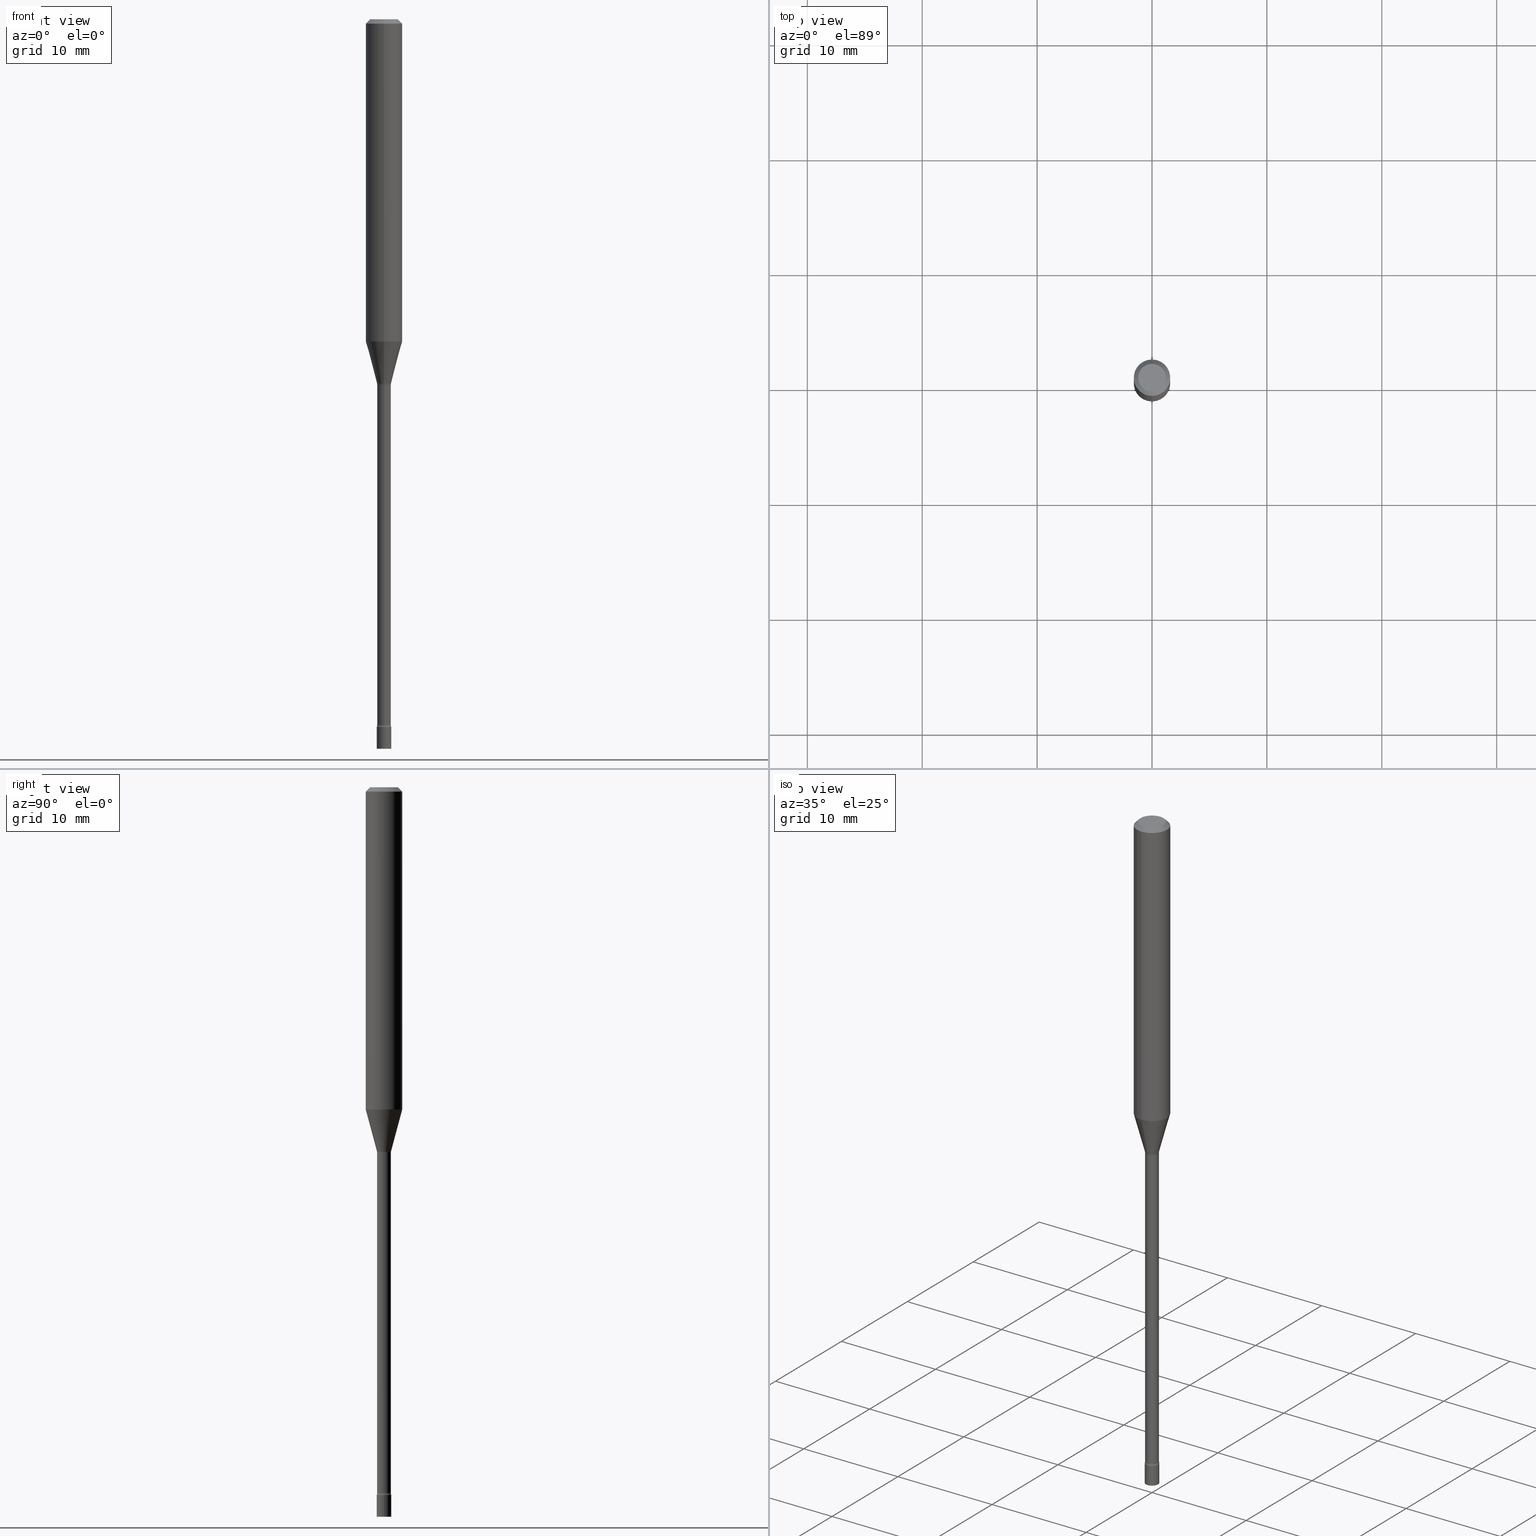
[diagram: canonical four-view strip — front | top / right | iso, engineering-drawing reading convention]
A machine part, canonical four-view strip (front | top / right | iso — engineering-drawing reading convention). The complete STEP part file that produces these views, byte-faithful:
ISO-10303-21;
HEADER;
FILE_DESCRIPTION (( 'STEP AP203' ),
    '1' );
FILE_NAME ('09668.STEP',
    '2024-03-09T00:36:11',
    ( '' ),
    ( '' ),
    'SwSTEP 2.0',
    'SolidWorks 2023',
    '' );
FILE_SCHEMA (( 'CONFIG_CONTROL_DESIGN' ));
ENDSEC;

DATA;
#1 = VECTOR ( 'NONE', #241, 39.37007874015748854 ) ;
#2 = DIRECTION ( 'NONE',  ( -2.445461215800332779E-29, 3.491492208706202500E-15, 1.000000000000000000 ) ) ;
#3 = VERTEX_POINT ( 'NONE', #417 ) ;
#4 = EDGE_LOOP ( 'NONE', ( #263, #208, #84, #265 ) ) ;
#5 = EDGE_LOOP ( 'NONE', ( #44, #283, #34, #11 ) ) ;
#6 = AXIS2_PLACEMENT_3D ( 'NONE', #469, #272, #75 ) ;
#7 = CIRCLE ( 'NONE', #143, 0.02350000000000008332 ) ;
#8 = CARTESIAN_POINT ( 'NONE',  ( -0.02500000000000000139, -8.420137112961222238E-15, -2.500000000000000000 ) ) ;
#9 = DIRECTION ( 'NONE',  ( -1.000000000000000000, 6.982962677686265922E-15, -4.883557194083112340E-29 ) ) ;
#10 = ORIENTED_EDGE ( 'NONE', *, *, #388, .F. ) ;
#11 = ORIENTED_EDGE ( 'NONE', *, *, #17, .F. ) ;
#12 = DIRECTION ( 'NONE',  ( -4.851104656540964275E-15, -0.7071067811865500152, -0.7071067811865450192 ) ) ;
#13 = CALENDAR_DATE ( 2024, 8, 3 ) ;
#14 = CONICAL_SURFACE ( 'NONE', #318, 0.06250000000000000000, 0.7853981633974483900 ) ;
#15 = VERTEX_POINT ( 'NONE', #8 ) ;
#16 = DIRECTION ( 'NONE',  ( -6.982962677686265922E-15, -1.000000000000000000, 0.000000000000000000 ) ) ;
#17 = EDGE_CURVE ( 'NONE', #415, #379, #135, .T. ) ;
#18 = DIRECTION ( 'NONE',  ( -6.982962677686266711E-15, -1.000000000000000000, 3.491492208706202500E-15 ) ) ;
#19 = PRODUCT_DEFINITION ( 'UNKNOWN', '', #339, #386 ) ;
#20 = FACE_OUTER_BOUND ( 'NONE', #144, .T. ) ;
#21 = CARTESIAN_POINT ( 'NONE',  ( 5.914254170850774673E-29, -8.444040013562677130E-15, -2.418461651584689509 ) ) ;
#22 = CIRCLE ( 'NONE', #107, 0.01500000000000002720 ) ;
#23 = DIRECTION ( 'NONE',  ( 7.105427357601001859E-15, 1.000000000000000000, 0.000000000000000000 ) ) ;
#24 = CIRCLE ( 'NONE', #187, 0.02500000000000000139 ) ;
#25 = LOCAL_TIME ( 19, 36, 11.00000000000000000, #513 ) ;
#26 = ADVANCED_FACE ( 'NONE', ( #51 ), #186, .F. ) ;
#27 = CARTESIAN_POINT ( 'NONE',  ( 0.000000000000000000, 0.000000000000000000, 0.000000000000000000 ) ) ;
#28 = PERSON_AND_ORGANIZATION_ROLE ( 'creator' ) ;
#29 = PLANE ( 'NONE',  #470 ) ;
#30 = DIRECTION ( 'NONE',  ( -6.982962677686265133E-15, -1.000000000000000000, 0.000000000000000000 ) ) ;
#31 = APPLICATION_PROTOCOL_DEFINITION ( 'international standard', 'config_control_design', 1994, #174 ) ;
#32 = CARTESIAN_POINT ( 'NONE',  ( 3.061665288873016119E-29, -4.371246607132010195E-15, -1.251974787463811190 ) ) ;
#33 = DIRECTION ( 'NONE',  ( -6.982962677686265133E-15, -1.000000000000000000, 0.000000000000000000 ) ) ;
#34 = ORIENTED_EDGE ( 'NONE', *, *, #380, .F. ) ;
#35 = FACE_OUTER_BOUND ( 'NONE', #327, .T. ) ;
#36 = DATE_AND_TIME ( #212, #414 ) ;
#37 = EDGE_CURVE ( 'NONE', #498, #132, #193, .T. ) ;
#38 = DIRECTION ( 'NONE',  ( 2.445461215800332779E-29, -3.491492208706202106E-15, -1.000000000000000000 ) ) ;
#39 = ORIENTED_EDGE ( 'NONE', *, *, #462, .F. ) ;
#40 = APPROVAL ( #99, 'UNSPECIFIED' ) ;
#41 = PLANE ( 'NONE',  #489 ) ;
#42 = DIRECTION ( 'NONE',  ( 2.438088387897960049E-29, -3.491481338843145188E-15, -1.000000000000000000 ) ) ;
#43 = CARTESIAN_POINT ( 'NONE',  ( 3.668191823700506017E-31, -5.237238313059314424E-17, -0.01500000000000003067 ) ) ;
#44 = ORIENTED_EDGE ( 'NONE', *, *, #323, .T. ) ;
#45 = AXIS2_PLACEMENT_3D ( 'NONE', #434, #425, #438 ) ;
#46 = EDGE_CURVE ( 'NONE', #514, #98, #171, .T. ) ;
#47 = CC_DESIGN_APPROVAL ( #326, ( #19 ) ) ;
#48 = PERSON_AND_ORGANIZATION ( #396, #207 ) ;
#49 = ORIENTED_EDGE ( 'NONE', *, *, #380, .T. ) ;
#50 = CYLINDRICAL_SURFACE ( 'NONE', #420, 0.02500000000000000139 ) ;
#51 = FACE_OUTER_BOUND ( 'NONE', #372, .T. ) ;
#52 = LINE ( 'NONE', #251, #194 ) ;
#53 = ORIENTED_EDGE ( 'NONE', *, *, #348, .T. ) ;
#54 = CIRCLE ( 'NONE', #344, 0.02500000000000000139 ) ;
#55 = CIRCLE ( 'NONE', #108, 0.01500000000000002720 ) ;
#56 = EDGE_CURVE ( 'NONE', #484, #90, #337, .T. ) ;
#57 = DIRECTION ( 'NONE',  ( -2.445468806185136877E-29, 3.491481338843145188E-15, 1.000000000000000000 ) ) ;
#58 = ORIENTED_EDGE ( 'NONE', *, *, #348, .F. ) ;
#59 = EDGE_LOOP ( 'NONE', ( #257, #223, #92, #185 ) ) ;
#60 = EDGE_CURVE ( 'NONE', #3, #484, #22, .T. ) ;
#61 = AXIS2_PLACEMENT_3D ( 'NONE', #43, #133, #290 ) ;
#62 = PRODUCT_RELATED_PRODUCT_CATEGORY ( 'detail', '', ( #394 ) ) ;
#63 = CARTESIAN_POINT ( 'NONE',  ( -1.676687031750432727E-16, -0.02401111260566833952, -1.248092501787273045 ) ) ;
#64 = CARTESIAN_POINT ( 'NONE',  ( 5.930261854998957144E-29, -8.466842246694628363E-15, -2.425000000000000266 ) ) ;
#65 = DIRECTION ( 'NONE',  ( -6.982962677686266711E-15, -1.000000000000000000, 3.491492208706202500E-15 ) ) ;
#66 = LINE ( 'NONE', #243, #227 ) ;
#67 = CARTESIAN_POINT ( 'NONE',  ( 0.000000000000000000, 0.000000000000000000, 0.000000000000000000 ) ) ;
#68 = PERSON_AND_ORGANIZATION_ROLE ( 'design_owner' ) ;
#69 = AXIS2_PLACEMENT_3D ( 'NONE', #303, #457, #18 ) ;
#70 = FACE_OUTER_BOUND ( 'NONE', #261, .T. ) ;
#71 = AXIS2_PLACEMENT_3D ( 'NONE', #27, #430, #197 ) ;
#72 =( GEOMETRIC_REPRESENTATION_CONTEXT ( 3 ) GLOBAL_UNCERTAINTY_ASSIGNED_CONTEXT ( ( #229 ) ) GLOBAL_UNIT_ASSIGNED_CONTEXT ( ( #125, #477, #279 ) ) REPRESENTATION_CONTEXT ( 'NONE', 'WORKASPACE' ) );
#73 = DIRECTION ( 'NONE',  ( -2.445461215800332779E-29, 3.491492208706202500E-15, 1.000000000000000000 ) ) ;
#74 = PERSON_AND_ORGANIZATION_ROLE ( 'design_supplier' ) ;
#75 = DIRECTION ( 'NONE',  ( -6.982962677686265133E-15, -1.000000000000000000, 0.000000000000000000 ) ) ;
#76 = DIRECTION ( 'NONE',  ( 1.000000000000000000, -6.982962677686254878E-15, 0.000000000000000000 ) ) ;
#77 = APPROVAL_DATE_TIME ( #391, #326 ) ;
#78 = DIRECTION ( 'NONE',  ( -1.000000000000000000, 6.982962677686265922E-15, -4.876176775795935793E-29 ) ) ;
#79 = ORIENTED_EDGE ( 'NONE', *, *, #291, .F. ) ;
#80 = CARTESIAN_POINT ( 'NONE',  ( -3.773273898774340269E-16, -0.04749999999999999362, 1.369324853041708217E-16 ) ) ;
#81 = ADVANCED_FACE ( 'NONE', ( #20 ), #29, .F. ) ;
#82 = CALENDAR_DATE ( 2024, 8, 3 ) ;
#83 = AXIS2_PLACEMENT_3D ( 'NONE', #32, #423, #499 ) ;
#84 = ORIENTED_EDGE ( 'NONE', *, *, #17, .T. ) ;
#85 = MECHANICAL_CONTEXT ( 'NONE', #174, 'mechanical' ) ;
#86 = PLANE ( 'NONE',  #269 ) ;
#87 = VERTEX_POINT ( 'NONE', #63 ) ;
#88 = CARTESIAN_POINT ( 'NONE',  ( 5.914254170850774673E-29, -8.444040013562677130E-15, -2.418461651584689509 ) ) ;
#89 = CARTESIAN_POINT ( 'NONE',  ( 1.745740669422178045E-16, 0.02499999999999127226, -2.500000000000000000 ) ) ;
#90 = VERTEX_POINT ( 'NONE', #198 ) ;
#91 = EDGE_CURVE ( 'NONE', #132, #498, #237, .T. ) ;
#92 = ORIENTED_EDGE ( 'NONE', *, *, #298, .T. ) ;
#93 = AXIS2_PLACEMENT_3D ( 'NONE', #21, #192, #476 ) ;
#94 = ORIENTED_EDGE ( 'NONE', *, *, #274, .F. ) ;
#95 = ORIENTED_EDGE ( 'NONE', *, *, #46, .F. ) ;
#96 = DATE_TIME_ROLE ( 'classification_date' ) ;
#97 = ADVANCED_FACE ( 'NONE', ( #358 ), #275, .T. ) ;
#98 = VERTEX_POINT ( 'NONE', #117 ) ;
#99 = APPROVAL_STATUS ( 'not_yet_approved' ) ;
#100 = CIRCLE ( 'NONE', #137, 0.02500000000000000139 ) ;
#101 = ORIENTED_EDGE ( 'NONE', *, *, #56, .F. ) ;
#102 = DIRECTION ( 'NONE',  ( 1.000000000000000000, -6.982962677686254878E-15, 0.000000000000000000 ) ) ;
#103 = ORIENTED_EDGE ( 'NONE', *, *, #91, .F. ) ;
#104 = EDGE_CURVE ( 'NONE', #446, #176, #236, .T. ) ;
#105 = CC_DESIGN_DATE_AND_TIME_ASSIGNMENT ( #36, #170, ( #19 ) ) ;
#106 = CARTESIAN_POINT ( 'NONE',  ( 5.930261854998957144E-29, -8.466842246694628363E-15, -2.425000000000000266 ) ) ;
#107 = AXIS2_PLACEMENT_3D ( 'NONE', #352, #310, #23 ) ;
#108 = AXIS2_PLACEMENT_3D ( 'NONE', #459, #110, #421 ) ;
#109 = LOCAL_TIME ( 19, 36, 11.00000000000000000, #431 ) ;
#110 = DIRECTION ( 'NONE',  ( -1.000000000000000000, 6.982962677686265922E-15, -4.883557194083112340E-29 ) ) ;
#111 = CARTESIAN_POINT ( 'NONE',  ( -4.364351673553647988E-16, -0.06250000000000388578, -1.104450018504813613 ) ) ;
#112 = CARTESIAN_POINT ( 'NONE',  ( 2.700889685043482305E-29, -3.856178634514979647E-15, -1.104450018504814057 ) ) ;
#113 = DIRECTION ( 'NONE',  ( 1.000000000000000000, -6.982962677686254878E-15, 0.000000000000000000 ) ) ;
#114 = DIRECTION ( 'NONE',  ( -2.445461215800332779E-29, 3.491492208706202500E-15, 1.000000000000000000 ) ) ;
#115 = CARTESIAN_POINT ( 'NONE',  ( -0.02500000000000000139, -8.420137112961222238E-15, -2.425000000000000266 ) ) ;
#116 = CIRCLE ( 'NONE', #479, 0.02350000000000000352 ) ;
#117 = CARTESIAN_POINT ( 'NONE',  ( -1.745740669420973060E-16, -0.02500000000000846337, -2.425000000000000266 ) ) ;
#118 = APPROVAL_PERSON_ORGANIZATION ( #48, #40, #343 ) ;
#119 = CARTESIAN_POINT ( 'NONE',  ( -1.676687031750432727E-16, -0.02401111260566833952, -1.248092501787273045 ) ) ;
#120 = CARTESIAN_POINT ( 'NONE',  ( 0.000000000000000000, 0.000000000000000000, 0.000000000000000000 ) ) ;
#121 = DIRECTION ( 'NONE',  ( -6.982962677686266711E-15, -1.000000000000000000, 3.491492208706202500E-15 ) ) ;
#122 = ORIENTED_EDGE ( 'NONE', *, *, #298, .F. ) ;
#123 = ADVANCED_FACE ( 'NONE', ( #349 ), #509, .T. ) ;
#124 = CYLINDRICAL_SURFACE ( 'NONE', #262, 0.06250000000000000000 ) ;
#125 =( CONVERSION_BASED_UNIT ( 'INCH', #443 ) LENGTH_UNIT ( ) NAMED_UNIT ( #233 ) );
#126 = EDGE_CURVE ( 'NONE', #402, #379, #54, .T. ) ;
#127 = EDGE_LOOP ( 'NONE', ( #336, #250, #370, #289 ) ) ;
#128 = CYLINDRICAL_SURFACE ( 'NONE', #293, 0.02500000000000000139 ) ;
#129 = CLOSED_SHELL ( 'NONE', ( #150, #123, #201, #433, #333, #131, #410, #97, #486, #184, #81, #161, #422, #26 ) ) ;
#130 = AXIS2_PLACEMENT_3D ( 'NONE', #312, #38, #406 ) ;
#131 = ADVANCED_FACE ( 'NONE', ( #70 ), #458, .T. ) ;
#132 = VERTEX_POINT ( 'NONE', #242 ) ;
#133 = DIRECTION ( 'NONE',  ( -2.445461215800332779E-29, 3.491492208706202500E-15, 1.000000000000000000 ) ) ;
#134 = ORIENTED_EDGE ( 'NONE', *, *, #448, .T. ) ;
#135 = LINE ( 'NONE', #408, #267 ) ;
#136 = CLOSED_SHELL ( 'NONE', ( #507, #252, #230, #191 ) ) ;
#137 = AXIS2_PLACEMENT_3D ( 'NONE', #246, #400, #33 ) ;
#138 = ORIENTED_EDGE ( 'NONE', *, *, #291, .T. ) ;
#139 = CC_DESIGN_PERSON_AND_ORGANIZATION_ASSIGNMENT ( #366, #467, ( #339 ) ) ;
#140 = EDGE_LOOP ( 'NONE', ( #331, #297 ) ) ;
#141 = DIRECTION ( 'NONE',  ( -2.445461215800332779E-29, 3.491492208706202500E-15, 1.000000000000000000 ) ) ;
#142 = AXIS2_PLACEMENT_3D ( 'NONE', #465, #505, #280 ) ;
#143 = AXIS2_PLACEMENT_3D ( 'NONE', #88, #2, #480 ) ;
#144 = EDGE_LOOP ( 'NONE', ( #456, #95 ) ) ;
#145 = FACE_OUTER_BOUND ( 'NONE', #59, .T. ) ;
#146 = DIRECTION ( 'NONE',  ( 4.937700262164548042E-15, 0.7071067811865451302, -0.7071067811865499042 ) ) ;
#147 = AXIS2_PLACEMENT_3D ( 'NONE', #500, #306, #65 ) ;
#148 = DIRECTION ( 'NONE',  ( -2.445468806185136597E-29, 3.491481338843145583E-15, 1.000000000000000000 ) ) ;
#149 = CYLINDRICAL_SURFACE ( 'NONE', #71, 0.02350000000000004516 ) ;
#150 = ADVANCED_FACE ( 'NONE', ( #395 ), #180, .F. ) ;
#151 = PLANE ( 'NONE',  #130 ) ;
#152 = DIRECTION ( 'NONE',  ( -2.445461215800333059E-29, 3.491492208706202106E-15, 1.000000000000000000 ) ) ;
#153 = MANIFOLD_SOLID_BREP ( 'Body-Move/Copy2[1]', #136 ) ;
#154 = FACE_OUTER_BOUND ( 'NONE', #189, .T. ) ;
#155 = PERSON_AND_ORGANIZATION ( #396, #207 ) ;
#156 = DIRECTION ( 'NONE',  ( 1.000000000000000000, -6.982962677686254878E-15, 0.000000000000000000 ) ) ;
#157 = CARTESIAN_POINT ( 'NONE',  ( 3.052161806851984185E-29, -4.357705245734896146E-15, -1.248092501787273045 ) ) ;
#158 = PERSON_AND_ORGANIZATION ( #396, #207 ) ;
#159 = AXIS2_PLACEMENT_3D ( 'NONE', #296, #342, #493 ) ;
#160 = AXIS2_PLACEMENT_3D ( 'NONE', #304, #9, #378 ) ;
#161 = ADVANCED_FACE ( 'NONE', ( #145 ), #440, .F. ) ;
#162 = CARTESIAN_POINT ( 'NONE',  ( 5.914272527905344176E-29, -8.444013725215716224E-15, -2.418461651584689509 ) ) ;
#163 = LINE ( 'NONE', #273, #429 ) ;
#164 = CC_DESIGN_DATE_AND_TIME_ASSIGNMENT ( #244, #96, ( #483 ) ) ;
#165 = FACE_OUTER_BOUND ( 'NONE', #213, .T. ) ;
#166 = DIRECTION ( 'NONE',  ( 1.000000000000000000, -6.982962677686267499E-15, 4.876176775795936353E-29 ) ) ;
#167 = PERSON_AND_ORGANIZATION ( #396, #207 ) ;
#168 = VERTEX_POINT ( 'NONE', #351 ) ;
#169 = EDGE_CURVE ( 'NONE', #176, #446, #300, .T. ) ;
#170 = DATE_TIME_ROLE ( 'creation_date' ) ;
#171 = CIRCLE ( 'NONE', #142, 0.02500000000000000139 ) ;
#172 = ORIENTED_EDGE ( 'NONE', *, *, #397, .T. ) ;
#173 = AXIS2_PLACEMENT_3D ( 'NONE', #449, #177, #517 ) ;
#174 = APPLICATION_CONTEXT ( 'configuration controlled 3d designs of mechanical parts and assemblies' ) ;
#175 = ORIENTED_EDGE ( 'NONE', *, *, #37, .T. ) ;
#176 = VERTEX_POINT ( 'NONE', #355 ) ;
#177 = DIRECTION ( 'NONE',  ( -2.445461215800332779E-29, 3.491492208706202500E-15, 1.000000000000000000 ) ) ;
#178 = EDGE_CURVE ( 'NONE', #87, #90, #55, .T. ) ;
#179 = ORIENTED_EDGE ( 'NONE', *, *, #214, .F. ) ;
#180 = TOROIDAL_SURFACE ( 'NONE', #83, 0.03850000000000000644, 0.01500000000000002720 ) ;
#181 = VECTOR ( 'NONE', #292, 39.37007874015748143 ) ;
#182 = CC_DESIGN_SECURITY_CLASSIFICATION ( #483, ( #339 ) ) ;
#183 = ORIENTED_EDGE ( 'NONE', *, *, #305, .F. ) ;
#184 = ADVANCED_FACE ( 'NONE', ( #234 ), #151, .F. ) ;
#185 = ORIENTED_EDGE ( 'NONE', *, *, #416, .T. ) ;
#186 = TOROIDAL_SURFACE ( 'NONE', #159, 0.03850000000000000644, 0.01500000000000002720 ) ;
#187 = AXIS2_PLACEMENT_3D ( 'NONE', #64, #204, #113 ) ;
#188 = DATE_AND_TIME ( #13, #195 ) ;
#189 = EDGE_LOOP ( 'NONE', ( #175, #519, #413, #454 ) ) ;
#190 = DIRECTION ( 'NONE',  ( -2.445461215800332779E-29, 3.491492208706202500E-15, 1.000000000000000000 ) ) ;
#191 = ADVANCED_FACE ( 'NONE', ( #202 ), #86, .T. ) ;
#192 = DIRECTION ( 'NONE',  ( -2.445461215800332779E-29, 3.491492208706202500E-15, 1.000000000000000000 ) ) ;
#193 = CIRCLE ( 'NONE', #375, 0.06250000000000000000 ) ;
#194 = VECTOR ( 'NONE', #254, 39.37007874015748143 ) ;
#195 = LOCAL_TIME ( 19, 36, 11.00000000000000000, #495 ) ;
#196 = DIRECTION ( 'NONE',  ( -6.982962677686265922E-15, -1.000000000000000000, 4.370956789862821150E-15 ) ) ;
#197 = DIRECTION ( 'NONE',  ( -6.982962677686265133E-15, -1.000000000000000000, 3.491492208706202500E-15 ) ) ;
#198 = CARTESIAN_POINT ( 'NONE',  ( -1.640996229255966836E-16, -0.02350000000000437156, -1.251974787463811190 ) ) ;
#199 = APPLICATION_CONTEXT ( 'configuration controlled 3d designs of mechanical parts and assemblies' ) ;
#200 = FACE_OUTER_BOUND ( 'NONE', #444, .T. ) ;
#201 = ADVANCED_FACE ( 'NONE', ( #165 ), #471, .F. ) ;
#202 = FACE_OUTER_BOUND ( 'NONE', #140, .T. ) ;
#203 = EDGE_CURVE ( 'NONE', #15, #402, #249, .T. ) ;
#204 = DIRECTION ( 'NONE',  ( -2.445468806185136597E-29, 3.491481338843145583E-15, 1.000000000000000000 ) ) ;
#205 =( LENGTH_UNIT ( ) NAMED_UNIT ( * ) SI_UNIT ( $, .METRE. ) );
#206 = CIRCLE ( 'NONE', #93, 0.02350000000000008332 ) ;
#207 = ORGANIZATION ( 'UNSPECIFIED', 'UNSPECIFIED', '' ) ;
#208 = ORIENTED_EDGE ( 'NONE', *, *, #481, .T. ) ;
#209 = CARTESIAN_POINT ( 'NONE',  ( 3.668191823700506017E-31, -5.237238313059314424E-17, -0.01500000000000003067 ) ) ;
#210 = APPROVAL_DATE_TIME ( #357, #436 ) ;
#211 = DIRECTION ( 'NONE',  ( -2.438088387897960049E-29, 3.491481338843145188E-15, 1.000000000000000000 ) ) ;
#212 = CALENDAR_DATE ( 2024, 8, 3 ) ;
#213 = EDGE_LOOP ( 'NONE', ( #94, #376, #302, #122 ) ) ;
#214 = EDGE_CURVE ( 'NONE', #87, #3, #412, .T. ) ;
#215 = VECTOR ( 'NONE', #311, 39.37007874015748143 ) ;
#216 = ORIENTED_EDGE ( 'NONE', *, *, #214, .T. ) ;
#217 = VERTEX_POINT ( 'NONE', #367 ) ;
#218 = EDGE_CURVE ( 'NONE', #132, #452, #409, .T. ) ;
#219 = CARTESIAN_POINT ( 'NONE',  ( 2.700889685043482305E-29, -3.856178634514979647E-15, -1.104450018504814057 ) ) ;
#220 = FACE_OUTER_BOUND ( 'NONE', #4, .T. ) ;
#221 = ORIENTED_EDGE ( 'NONE', *, *, #510, .T. ) ;
#222 = CIRCLE ( 'NONE', #248, 0.06250000000000000000 ) ;
#223 = ORIENTED_EDGE ( 'NONE', *, *, #501, .F. ) ;
#224 = CARTESIAN_POINT ( 'NONE',  ( 3.061655785902614755E-29, -4.371260215926500486E-15, -1.251974787463811190 ) ) ;
#225 = VERTEX_POINT ( 'NONE', #442 ) ;
#226 = ORIENTED_EDGE ( 'NONE', *, *, #104, .F. ) ;
#227 = VECTOR ( 'NONE', #152, 39.37007874015748143 ) ;
#228 = DIRECTION ( 'NONE',  ( -6.982962677686265922E-15, -1.000000000000000000, 3.491492208706202106E-15 ) ) ;
#229 = UNCERTAINTY_MEASURE_WITH_UNIT (LENGTH_MEASURE( 1.000000000000000082E-05 ), #125, 'distance_accuracy_value', 'NONE');
#230 = ADVANCED_FACE ( 'NONE', ( #220 ), #50, .T. ) ;
#231 = DIRECTION ( 'NONE',  ( -6.982962677686265922E-15, -1.000000000000000000, 4.370956789862821150E-15 ) ) ;
#232 = CARTESIAN_POINT ( 'NONE',  ( 2.735589532676981763E-16, 0.03849999999999163119, -2.418461651584689509 ) ) ;
#233 = DIMENSIONAL_EXPONENTS ( 1.000000000000000000, 0.000000000000000000, 0.000000000000000000, 0.000000000000000000, 0.000000000000000000, 0.000000000000000000, 0.000000000000000000 ) ;
#234 = FACE_OUTER_BOUND ( 'NONE', #299, .T. ) ;
#235 = CARTESIAN_POINT ( 'NONE',  ( 0.02500000000000000139, -8.641416313636785031E-15, -2.425000000000000266 ) ) ;
#236 = CIRCLE ( 'NONE', #277, 0.04749999999999999362 ) ;
#237 = CIRCLE ( 'NONE', #520, 0.06250000000000000000 ) ;
#238 = AXIS2_PLACEMENT_3D ( 'NONE', #157, #393, #313 ) ;
#239 = CARTESIAN_POINT ( 'NONE',  ( 3.061655785902614755E-29, -4.371260215926500486E-15, -1.251974787463811190 ) ) ;
#240 = EDGE_CURVE ( 'NONE', #498, #217, #52, .T. ) ;
#241 = DIRECTION ( 'NONE',  ( -1.807323732225326195E-15, -0.2588190451025176309, 0.9659258262890690894 ) ) ;
#242 = CARTESIAN_POINT ( 'NONE',  ( 4.440892098500893388E-16, 0.06249999999999612116, -1.104450018504814057 ) ) ;
#243 = CARTESIAN_POINT ( 'NONE',  ( 1.669775429036238399E-16, 0.02350000000000004516, -8.205006690459591386E-17 ) ) ;
#244 = DATE_AND_TIME ( #435, #369 ) ;
#245 = ORIENTED_EDGE ( 'NONE', *, *, #501, .T. ) ;
#246 = CARTESIAN_POINT ( 'NONE',  ( 5.930243448315807289E-29, -8.466868606112542088E-15, -2.425000000000000266 ) ) ;
#247 = CALENDAR_DATE ( 2024, 8, 3 ) ;
#248 = AXIS2_PLACEMENT_3D ( 'NONE', #321, #389, #466 ) ;
#249 = LINE ( 'NONE', #371, #278 ) ;
#250 = ORIENTED_EDGE ( 'NONE', *, *, #91, .T. ) ;
#251 = CARTESIAN_POINT ( 'NONE',  ( -4.364351673553916201E-16, -0.06250000000000000000, 2.182182630441376316E-16 ) ) ;
#252 = ADVANCED_FACE ( 'NONE', ( #403 ), #41, .T. ) ;
#253 = ORIENTED_EDGE ( 'NONE', *, *, #104, .T. ) ;
#254 = DIRECTION ( 'NONE',  ( -2.445461215800333059E-29, 3.491492208706202106E-15, 1.000000000000000000 ) ) ;
#255 = ORIENTED_EDGE ( 'NONE', *, *, #448, .F. ) ;
#256 = AXIS2_PLACEMENT_3D ( 'NONE', #316, #472, #76 ) ;
#257 = ORIENTED_EDGE ( 'NONE', *, *, #341, .F. ) ;
#258 = CC_DESIGN_APPROVAL ( #40, ( #483 ) ) ;
#259 = ORIENTED_EDGE ( 'NONE', *, *, #510, .F. ) ;
#260 = ORIENTED_EDGE ( 'NONE', *, *, #56, .T. ) ;
#261 = EDGE_LOOP ( 'NONE', ( #216, #485, #294, #58 ) ) ;
#262 = AXIS2_PLACEMENT_3D ( 'NONE', #67, #73, #361 ) ;
#263 = ORIENTED_EDGE ( 'NONE', *, *, #203, .F. ) ;
#264 = DIRECTION ( 'NONE',  ( -2.445461215800332779E-29, 3.491492208706202500E-15, 1.000000000000000000 ) ) ;
#265 = ORIENTED_EDGE ( 'NONE', *, *, #126, .F. ) ;
#266 = CARTESIAN_POINT ( 'NONE',  ( 1.745740669422159556E-16, 0.02499999999999153247, -2.425000000000000266 ) ) ;
#267 = VECTOR ( 'NONE', #57, 39.37007874015748143 ) ;
#268 = LINE ( 'NONE', #492, #362 ) ;
#269 = AXIS2_PLACEMENT_3D ( 'NONE', #89, #42, #78 ) ;
#270 = DIRECTION ( 'NONE',  ( -6.982962677686265922E-15, -1.000000000000000000, 0.000000000000000000 ) ) ;
#271 = CARTESIAN_POINT ( 'NONE',  ( 1.669775429036830045E-16, 0.02349999999999563202, -1.251974787463811190 ) ) ;
#272 = DIRECTION ( 'NONE',  ( -2.445461215800332779E-29, 3.491492208706202500E-15, 1.000000000000000000 ) ) ;
#273 = CARTESIAN_POINT ( 'NONE',  ( 4.364351673553919652E-16, 0.06249999999999995143, -0.01500000000000024751 ) ) ;
#274 = EDGE_CURVE ( 'NONE', #168, #225, #7, .T. ) ;
#275 = CYLINDRICAL_SURFACE ( 'NONE', #428, 0.06250000000000000000 ) ;
#276 = CARTESIAN_POINT ( 'NONE',  ( -1.640996229256275477E-16, -0.02350000000000004516, 8.205006690459591386E-17 ) ) ;
#277 = AXIS2_PLACEMENT_3D ( 'NONE', #502, #315, #463 ) ;
#278 = VECTOR ( 'NONE', #295, 39.37007874015748143 ) ;
#279 =( NAMED_UNIT ( * ) SI_UNIT ( $, .STERADIAN. ) SOLID_ANGLE_UNIT ( ) );
#280 = DIRECTION ( 'NONE',  ( -6.982962677686265133E-15, -1.000000000000000000, 0.000000000000000000 ) ) ;
#281 = DIRECTION ( 'NONE',  ( 7.105427357600997914E-15, 1.000000000000000000, 0.000000000000000000 ) ) ;
#282 = COORDINATED_UNIVERSAL_TIME_OFFSET ( 5, 0, .BEHIND. ) ;
#283 = ORIENTED_EDGE ( 'NONE', *, *, #203, .T. ) ;
#284 = DIRECTION ( 'NONE',  ( -2.445461215800332779E-29, 3.491492208706202500E-15, 1.000000000000000000 ) ) ;
#285 = ORIENTED_EDGE ( 'NONE', *, *, #305, .T. ) ;
#286 = CARTESIAN_POINT ( 'NONE',  ( 0.000000000000000000, 0.000000000000000000, 0.000000000000000000 ) ) ;
#287 = EDGE_CURVE ( 'NONE', #217, #452, #288, .T. ) ;
#288 = CIRCLE ( 'NONE', #61, 0.06250000000000000000 ) ;
#289 = ORIENTED_EDGE ( 'NONE', *, *, #397, .F. ) ;
#290 = DIRECTION ( 'NONE',  ( -6.982962677686265922E-15, -1.000000000000000000, 3.483106191921935554E-15 ) ) ;
#291 = EDGE_CURVE ( 'NONE', #90, #484, #116, .T. ) ;
#292 = DIRECTION ( 'NONE',  ( -2.445461215800333059E-29, 3.491492208706202106E-15, 1.000000000000000000 ) ) ;
#293 = AXIS2_PLACEMENT_3D ( 'NONE', #286, #515, #166 ) ;
#294 = ORIENTED_EDGE ( 'NONE', *, *, #37, .F. ) ;
#295 = DIRECTION ( 'NONE',  ( -2.445468806185136877E-29, 3.491481338843145188E-15, 1.000000000000000000 ) ) ;
#296 = CARTESIAN_POINT ( 'NONE',  ( 3.061665288873016119E-29, -4.371246607132010195E-15, -1.251974787463811190 ) ) ;
#297 = ORIENTED_EDGE ( 'NONE', *, *, #481, .F. ) ;
#298 = EDGE_CURVE ( 'NONE', #225, #98, #401, .T. ) ;
#299 = EDGE_LOOP ( 'NONE', ( #437, #253 ) ) ;
#300 = CIRCLE ( 'NONE', #147, 0.04749999999999999362 ) ;
#301 = AXIS2_PLACEMENT_3D ( 'NONE', #162, #320, #121 ) ;
#302 = ORIENTED_EDGE ( 'NONE', *, *, #46, .T. ) ;
#303 = CARTESIAN_POINT ( 'NONE',  ( 5.914272527905344176E-29, -8.444013725215716224E-15, -2.418461651584689509 ) ) ;
#304 = CARTESIAN_POINT ( 'NONE',  ( -2.688440630908625909E-16, -0.03850000000000851352, -2.418461651584689509 ) ) ;
#305 = EDGE_CURVE ( 'NONE', #446, #217, #268, .T. ) ;
#306 = DIRECTION ( 'NONE',  ( -2.445461215800332779E-29, 3.491492208706202500E-15, 1.000000000000000000 ) ) ;
#307 = DIRECTION ( 'NONE',  ( 6.982962677686265922E-15, 1.000000000000000000, -3.483106191921935554E-15 ) ) ;
#308 = AXIS2_PLACEMENT_3D ( 'NONE', #494, #455, #102 ) ;
#309 = APPROVAL_PERSON_ORGANIZATION ( #155, #326, #363 ) ;
#310 = DIRECTION ( 'NONE',  ( 1.000000000000000000, -7.105427357601001070E-15, 4.926315641659512311E-29 ) ) ;
#311 = DIRECTION ( 'NONE',  ( -2.445461215800333059E-29, 3.491492208706202106E-15, 1.000000000000000000 ) ) ;
#312 = CARTESIAN_POINT ( 'NONE',  ( 3.316907271900976096E-16, 0.04749999999999999362, -1.803025772182315267E-16 ) ) ;
#313 = DIRECTION ( 'NONE',  ( -6.982962677686265133E-15, -1.000000000000000000, 0.000000000000000000 ) ) ;
#314 = APPROVAL_STATUS ( 'not_yet_approved' ) ;
#315 = DIRECTION ( 'NONE',  ( -2.445461215800332779E-29, 3.491492208706202500E-15, 1.000000000000000000 ) ) ;
#316 = CARTESIAN_POINT ( 'NONE',  ( 6.113672015462842613E-29, -8.728703347107864943E-15, -2.500000000000000000 ) ) ;
#317 = AXIS2_PLACEMENT_3D ( 'NONE', #419, #427, #387 ) ;
#318 = AXIS2_PLACEMENT_3D ( 'NONE', #209, #365, #307 ) ;
#319 = PERSON_AND_ORGANIZATION_ROLE ( 'classification_officer' ) ;
#320 = DIRECTION ( 'NONE',  ( -2.445461215800332779E-29, 3.491492208706202500E-15, 1.000000000000000000 ) ) ;
#321 = CARTESIAN_POINT ( 'NONE',  ( 3.668191823700506017E-31, -5.237238313059314424E-17, -0.01500000000000003067 ) ) ;
#322 = APPLICATION_PROTOCOL_DEFINITION ( 'international standard', 'config_control_design', 1994, #199 ) ;
#323 = EDGE_CURVE ( 'NONE', #415, #15, #354, .T. ) ;
#324 = FACE_OUTER_BOUND ( 'NONE', #5, .T. ) ;
#325 = SECURITY_CLASSIFICATION_LEVEL ( 'unclassified' ) ;
#326 = APPROVAL ( #314, 'UNSPECIFIED' ) ;
#327 = EDGE_LOOP ( 'NONE', ( #183, #338, #487, #172 ) ) ;
#328 = PERSON_AND_ORGANIZATION ( #396, #207 ) ;
#329 = CONICAL_SURFACE ( 'NONE', #503, 0.02401111260566398189, 0.2617993877991496854 ) ;
#330 = APPROVAL_PERSON_ORGANIZATION ( #328, #436, #426 ) ;
#331 = ORIENTED_EDGE ( 'NONE', *, *, #323, .F. ) ;
#332 = DIRECTION ( 'NONE',  ( 1.000000000000000000, -6.982962677686265922E-15, 4.876176775795935793E-29 ) ) ;
#333 = ADVANCED_FACE ( 'NONE', ( #154 ), #124, .T. ) ;
#334 = ADVANCED_BREP_SHAPE_REPRESENTATION ( '09668', ( #153, #468, #473 ), #72 ) ;
#335 = CC_DESIGN_PERSON_AND_ORGANIZATION_ASSIGNMENT ( #158, #28, ( #19 ) ) ;
#336 = ORIENTED_EDGE ( 'NONE', *, *, #218, .F. ) ;
#337 = CIRCLE ( 'NONE', #496, 0.02350000000000000352 ) ;
#338 = ORIENTED_EDGE ( 'NONE', *, *, #169, .F. ) ;
#339 = PRODUCT_DEFINITION_FORMATION_WITH_SPECIFIED_SOURCE ( 'ANY', '', #394, .NOT_KNOWN. ) ;
#340 = ORIENTED_EDGE ( 'NONE', *, *, #60, .T. ) ;
#341 = EDGE_CURVE ( 'NONE', #168, #514, #453, .T. ) ;
#342 = DIRECTION ( 'NONE',  ( -2.445461215800332779E-29, 3.491492208706202500E-15, 1.000000000000000000 ) ) ;
#343 = APPROVAL_ROLE ( '' ) ;
#344 = AXIS2_PLACEMENT_3D ( 'NONE', #106, #148, #156 ) ;
#345 = EDGE_LOOP ( 'NONE', ( #259, #377, #134, #101 ) ) ;
#346 = VECTOR ( 'NONE', #385, 39.37007874015748143 ) ;
#347 = APPROVAL_DATE_TIME ( #188, #40 ) ;
#348 = EDGE_CURVE ( 'NONE', #87, #498, #512, .T. ) ;
#349 = FACE_OUTER_BOUND ( 'NONE', #490, .T. ) ;
#350 = CC_DESIGN_PERSON_AND_ORGANIZATION_ASSIGNMENT ( #167, #74, ( #339 ) ) ;
#351 = CARTESIAN_POINT ( 'NONE',  ( 1.723066134218837359E-16, 0.02349999999999163869, -2.418461651584689509 ) ) ;
#352 = CARTESIAN_POINT ( 'NONE',  ( 2.735589532676691857E-16, 0.03849999999999563494, -1.251974787463811190 ) ) ;
#353 = DIRECTION ( 'NONE',  ( 1.000000000000000000, -7.105427357601001070E-15, 4.926315641659512311E-29 ) ) ;
#354 = CIRCLE ( 'NONE', #308, 0.02500000000000000139 ) ;
#355 = CARTESIAN_POINT ( 'NONE',  ( 3.840629472727447874E-16, 0.04749999999999999362, -1.947592745229183872E-16 ) ) ;
#356 = LINE ( 'NONE', #276, #215 ) ;
#357 = DATE_AND_TIME ( #247, #109 ) ;
#358 = FACE_OUTER_BOUND ( 'NONE', #127, .T. ) ;
#359 = LINE ( 'NONE', #511, #346 ) ;
#360 = PERSON_AND_ORGANIZATION ( #396, #207 ) ;
#361 = DIRECTION ( 'NONE',  ( -6.982962677686265922E-15, -1.000000000000000000, 3.491492208706202106E-15 ) ) ;
#362 = VECTOR ( 'NONE', #12, 39.37007874015748143 ) ;
#363 = APPROVAL_ROLE ( '' ) ;
#364 = EDGE_CURVE ( 'NONE', #3, #87, #460, .T. ) ;
#365 = DIRECTION ( 'NONE',  ( 2.445461215800332779E-29, -3.491492208706202500E-15, -1.000000000000000000 ) ) ;
#366 = PERSON_AND_ORGANIZATION ( #396, #207 ) ;
#367 = CARTESIAN_POINT ( 'NONE',  ( -4.364351673553912750E-16, -0.06250000000000005551, -0.01499999999999981209 ) ) ;
#368 = ORIENTED_EDGE ( 'NONE', *, *, #364, .T. ) ;
#369 = LOCAL_TIME ( 19, 36, 11.00000000000000000, #282 ) ;
#370 = ORIENTED_EDGE ( 'NONE', *, *, #240, .T. ) ;
#371 = CARTESIAN_POINT ( 'NONE',  ( -0.02500000000000000139, 1.776356839400250563E-16, -1.229733772563726656E-30 ) ) ;
#372 = EDGE_LOOP ( 'NONE', ( #451, #179, #411, #138 ) ) ;
#373 = DIRECTION ( 'NONE',  ( 1.000000000000000000, -6.982962677686267499E-15, 4.876176775795936353E-29 ) ) ;
#374 = DIRECTION ( 'NONE',  ( -2.445468806185136597E-29, 3.491481338843145583E-15, 1.000000000000000000 ) ) ;
#375 = AXIS2_PLACEMENT_3D ( 'NONE', #219, #141, #231 ) ;
#376 = ORIENTED_EDGE ( 'NONE', *, *, #341, .T. ) ;
#377 = ORIENTED_EDGE ( 'NONE', *, *, #274, .T. ) ;
#378 = DIRECTION ( 'NONE',  ( -6.982962677686262766E-15, -1.000000000000000000, 0.000000000000000000 ) ) ;
#379 = VERTEX_POINT ( 'NONE', #235 ) ;
#380 = EDGE_CURVE ( 'NONE', #379, #402, #24, .T. ) ;
#381 = ORIENTED_EDGE ( 'NONE', *, *, #178, .F. ) ;
#382 = CARTESIAN_POINT ( 'NONE',  ( 0.000000000000000000, 0.000000000000000000, 0.000000000000000000 ) ) ;
#383 = PRODUCT_DEFINITION_SHAPE ( 'NONE', 'NONE',  #19 ) ;
#384 = DIRECTION ( 'NONE',  ( -2.445461215800332779E-29, 3.491492208706202500E-15, 1.000000000000000000 ) ) ;
#385 = DIRECTION ( 'NONE',  ( 1.839019923739596371E-15, 0.2588190451025244032, 0.9659258262890673130 ) ) ;
#386 = DESIGN_CONTEXT ( 'detailed design', #199, 'design' ) ;
#387 = DIRECTION ( 'NONE',  ( -6.982962677686265133E-15, -1.000000000000000000, 3.491492208706202500E-15 ) ) ;
#388 = EDGE_CURVE ( 'NONE', #176, #452, #163, .T. ) ;
#389 = DIRECTION ( 'NONE',  ( -2.445461215800332779E-29, 3.491492208706202500E-15, 1.000000000000000000 ) ) ;
#390 = CC_DESIGN_APPROVAL ( #436, ( #339 ) ) ;
#391 = DATE_AND_TIME ( #82, #25 ) ;
#392 = DIRECTION ( 'NONE',  ( -2.445461215800332779E-29, 3.491492208706202106E-15, 1.000000000000000000 ) ) ;
#393 = DIRECTION ( 'NONE',  ( -2.445461215800332779E-29, 3.491492208706202500E-15, 1.000000000000000000 ) ) ;
#394 = PRODUCT ( '09668', '09668', '', ( #85 ) ) ;
#395 = FACE_OUTER_BOUND ( 'NONE', #447, .T. ) ;
#396 = PERSON ( 'UNSPECIFIED', 'UNSPECIFIED', 'UNSPECIFIED', ('UNSPECIFIED'), ('UNSPECIFIED'), ('UNSPECIFIED') ) ;
#397 = EDGE_CURVE ( 'NONE', #452, #217, #222, .T. ) ;
#398 = CARTESIAN_POINT ( 'NONE',  ( 1.776356839400842949E-16, 0.02499999999999152900, -2.425000000000000266 ) ) ;
#399 = ORIENTED_EDGE ( 'NONE', *, *, #287, .T. ) ;
#400 = DIRECTION ( 'NONE',  ( -2.445461215800332779E-29, 3.491492208706202500E-15, 1.000000000000000000 ) ) ;
#401 = CIRCLE ( 'NONE', #160, 0.01499999999999999424 ) ;
#402 = VERTEX_POINT ( 'NONE', #115 ) ;
#403 = FACE_OUTER_BOUND ( 'NONE', #475, .T. ) ;
#404 = CARTESIAN_POINT ( 'NONE',  ( 5.930261854998957144E-29, -8.466842246694628363E-15, -2.425000000000000266 ) ) ;
#405 = CIRCLE ( 'NONE', #256, 0.02500000000000000139 ) ;
#406 = DIRECTION ( 'NONE',  ( 6.982962677686265922E-15, 1.000000000000000000, -3.491492208706202106E-15 ) ) ;
#407 = ORIENTED_EDGE ( 'NONE', *, *, #126, .T. ) ;
#408 = CARTESIAN_POINT ( 'NONE',  ( 0.02500000000000000139, -1.745740669421566924E-16, 1.219044193948984123E-30 ) ) ;
#409 = LINE ( 'NONE', #488, #181 ) ;
#410 = ADVANCED_FACE ( 'NONE', ( #461 ), #329, .T. ) ;
#411 = ORIENTED_EDGE ( 'NONE', *, *, #178, .T. ) ;
#412 = CIRCLE ( 'NONE', #173, 0.02401111260566398189 ) ;
#413 = ORIENTED_EDGE ( 'NONE', *, *, #287, .F. ) ;
#414 = LOCAL_TIME ( 19, 36, 11.00000000000000000, #508 ) ;
#415 = VERTEX_POINT ( 'NONE', #504 ) ;
#416 = EDGE_CURVE ( 'NONE', #98, #514, #100, .T. ) ;
#417 = CARTESIAN_POINT ( 'NONE',  ( 3.073492131224216559E-16, 0.02401111260565961733, -1.248092501787273045 ) ) ;
#418 = SHAPE_DEFINITION_REPRESENTATION ( #383, #334 ) ;
#419 = CARTESIAN_POINT ( 'NONE',  ( 0.000000000000000000, 0.000000000000000000, 0.000000000000000000 ) ) ;
#420 = AXIS2_PLACEMENT_3D ( 'NONE', #445, #374, #373 ) ;
#421 = DIRECTION ( 'NONE',  ( -6.982962677686265133E-15, -1.000000000000000000, 0.000000000000000000 ) ) ;
#422 = ADVANCED_FACE ( 'NONE', ( #464 ), #149, .T. ) ;
#423 = DIRECTION ( 'NONE',  ( -2.445461215800332779E-29, 3.491492208706202500E-15, 1.000000000000000000 ) ) ;
#424 = CC_DESIGN_PERSON_AND_ORGANIZATION_ASSIGNMENT ( #518, #68, ( #394 ) ) ;
#425 = DIRECTION ( 'NONE',  ( 2.445461215800332779E-29, -3.491492208706202500E-15, -1.000000000000000000 ) ) ;
#426 = APPROVAL_ROLE ( '' ) ;
#427 = DIRECTION ( 'NONE',  ( -2.445461215800332779E-29, 3.491492208706202500E-15, 1.000000000000000000 ) ) ;
#428 = AXIS2_PLACEMENT_3D ( 'NONE', #382, #190, #228 ) ;
#429 = VECTOR ( 'NONE', #146, 39.37007874015748143 ) ;
#430 = DIRECTION ( 'NONE',  ( -2.445461215800332779E-29, 3.491492208706202500E-15, 1.000000000000000000 ) ) ;
#431 = COORDINATED_UNIVERSAL_TIME_OFFSET ( 5, 0, .BEHIND. ) ;
#432 = DIRECTION ( 'NONE',  ( -6.982962677686265922E-15, -1.000000000000000000, 3.491492208706202106E-15 ) ) ;
#433 = ADVANCED_FACE ( 'NONE', ( #200 ), #497, .T. ) ;
#434 = CARTESIAN_POINT ( 'NONE',  ( 3.668191823700506017E-31, -5.237238313059314424E-17, -0.01500000000000003067 ) ) ;
#435 = CALENDAR_DATE ( 2024, 8, 3 ) ;
#436 = APPROVAL ( #482, 'UNSPECIFIED' ) ;
#437 = ORIENTED_EDGE ( 'NONE', *, *, #169, .T. ) ;
#438 = DIRECTION ( 'NONE',  ( 6.982962677686265922E-15, 1.000000000000000000, -3.483106191921935554E-15 ) ) ;
#439 = DIRECTION ( 'NONE',  ( 1.000000000000000000, 0.000000000000000000, 0.000000000000000000 ) ) ;
#440 = TOROIDAL_SURFACE ( 'NONE', #69, 0.03850000000000007583, 0.01499999999999998904 ) ;
#441 = AXIS2_PLACEMENT_3D ( 'NONE', #232, #353, #281 ) ;
#442 = CARTESIAN_POINT ( 'NONE',  ( -1.640996229255686790E-16, -0.02350000000000852796, -2.418461651584689509 ) ) ;
#443 = LENGTH_MEASURE_WITH_UNIT ( LENGTH_MEASURE( 0.02539999999999999897 ), #205 );
#444 = EDGE_LOOP ( 'NONE', ( #226, #285, #399, #10 ) ) ;
#445 = CARTESIAN_POINT ( 'NONE',  ( 0.000000000000000000, 0.000000000000000000, 0.000000000000000000 ) ) ;
#446 = VERTEX_POINT ( 'NONE', #80 ) ;
#447 = EDGE_LOOP ( 'NONE', ( #491, #340, #260, #381 ) ) ;
#448 = EDGE_CURVE ( 'NONE', #225, #90, #356, .T. ) ;
#449 = CARTESIAN_POINT ( 'NONE',  ( 3.052161806851984185E-29, -4.357705245734896146E-15, -1.248092501787273045 ) ) ;
#450 = CC_DESIGN_PERSON_AND_ORGANIZATION_ASSIGNMENT ( #360, #319, ( #483 ) ) ;
#451 = ORIENTED_EDGE ( 'NONE', *, *, #60, .F. ) ;
#452 = VERTEX_POINT ( 'NONE', #506 ) ;
#453 = CIRCLE ( 'NONE', #441, 0.01499999999999999424 ) ;
#454 = ORIENTED_EDGE ( 'NONE', *, *, #240, .F. ) ;
#455 = DIRECTION ( 'NONE',  ( -2.445468806185136597E-29, 3.491481338843145583E-15, 1.000000000000000000 ) ) ;
#456 = ORIENTED_EDGE ( 'NONE', *, *, #416, .F. ) ;
#457 = DIRECTION ( 'NONE',  ( -2.445461215800332779E-29, 3.491492208706202500E-15, 1.000000000000000000 ) ) ;
#458 = CONICAL_SURFACE ( 'NONE', #6, 0.02401111260566398189, 0.2617993877991496854 ) ;
#459 = CARTESIAN_POINT ( 'NONE',  ( -2.688440630908906448E-16, -0.03850000000000437794, -1.251974787463811190 ) ) ;
#460 = CIRCLE ( 'NONE', #238, 0.02401111260566398189 ) ;
#461 = FACE_OUTER_BOUND ( 'NONE', #478, .T. ) ;
#462 = EDGE_CURVE ( 'NONE', #3, #132, #359, .T. ) ;
#463 = DIRECTION ( 'NONE',  ( -6.982962677686266711E-15, -1.000000000000000000, 3.491492208706202500E-15 ) ) ;
#464 = FACE_OUTER_BOUND ( 'NONE', #345, .T. ) ;
#465 = CARTESIAN_POINT ( 'NONE',  ( 5.930243448315807289E-29, -8.466868606112542088E-15, -2.425000000000000266 ) ) ;
#466 = DIRECTION ( 'NONE',  ( -6.982962677686265922E-15, -1.000000000000000000, 3.483106191921935554E-15 ) ) ;
#467 = PERSON_AND_ORGANIZATION_ROLE ( 'creator' ) ;
#468 = MANIFOLD_SOLID_BREP ( 'Body-Move/Copy2[2]', #129 ) ;
#469 = CARTESIAN_POINT ( 'NONE',  ( 3.052161806851984185E-29, -4.357705245734896146E-15, -1.248092501787273045 ) ) ;
#470 = AXIS2_PLACEMENT_3D ( 'NONE', #266, #392, #432 ) ;
#471 = TOROIDAL_SURFACE ( 'NONE', #301, 0.03850000000000007583, 0.01499999999999998904 ) ;
#472 = DIRECTION ( 'NONE',  ( -2.445468806185136597E-29, 3.491481338843145583E-15, 1.000000000000000000 ) ) ;
#473 = AXIS2_PLACEMENT_3D ( 'NONE', #120, #516, #439 ) ;
#474 = CARTESIAN_POINT ( 'NONE',  ( 3.052161806851984185E-29, -4.357705245734896146E-15, -1.248092501787273045 ) ) ;
#475 = EDGE_LOOP ( 'NONE', ( #49, #407 ) ) ;
#476 = DIRECTION ( 'NONE',  ( -6.982962677686265133E-15, -1.000000000000000000, 0.000000000000000000 ) ) ;
#477 =( NAMED_UNIT ( * ) PLANE_ANGLE_UNIT ( ) SI_UNIT ( $, .RADIAN. ) );
#478 = EDGE_LOOP ( 'NONE', ( #39, #368, #53, #103 ) ) ;
#479 = AXIS2_PLACEMENT_3D ( 'NONE', #224, #264, #16 ) ;
#480 = DIRECTION ( 'NONE',  ( -6.982962677686265133E-15, -1.000000000000000000, 0.000000000000000000 ) ) ;
#481 = EDGE_CURVE ( 'NONE', #15, #415, #405, .T. ) ;
#482 = APPROVAL_STATUS ( 'not_yet_approved' ) ;
#483 = SECURITY_CLASSIFICATION ( '', '', #325 ) ;
#484 = VERTEX_POINT ( 'NONE', #271 ) ;
#485 = ORIENTED_EDGE ( 'NONE', *, *, #462, .T. ) ;
#486 = ADVANCED_FACE ( 'NONE', ( #35 ), #14, .T. ) ;
#487 = ORIENTED_EDGE ( 'NONE', *, *, #388, .T. ) ;
#488 = CARTESIAN_POINT ( 'NONE',  ( 4.440892098500625669E-16, 0.06250000000000000000, -2.182182630441376316E-16 ) ) ;
#489 = AXIS2_PLACEMENT_3D ( 'NONE', #404, #211, #332 ) ;
#490 = EDGE_LOOP ( 'NONE', ( #245, #221, #79, #255 ) ) ;
#491 = ORIENTED_EDGE ( 'NONE', *, *, #364, .F. ) ;
#492 = CARTESIAN_POINT ( 'NONE',  ( -4.287811248607203282E-16, -0.06250000000000005551, -0.01499999999999981209 ) ) ;
#493 = DIRECTION ( 'NONE',  ( -6.982962677686265922E-15, -1.000000000000000000, 3.491492208706202500E-15 ) ) ;
#494 = CARTESIAN_POINT ( 'NONE',  ( 6.113672015462842613E-29, -8.728703347107864943E-15, -2.500000000000000000 ) ) ;
#495 = COORDINATED_UNIVERSAL_TIME_OFFSET ( 5, 0, .BEHIND. ) ;
#496 = AXIS2_PLACEMENT_3D ( 'NONE', #239, #114, #270 ) ;
#497 = CONICAL_SURFACE ( 'NONE', #45, 0.06250000000000000000, 0.7853981633974483900 ) ;
#498 = VERTEX_POINT ( 'NONE', #111 ) ;
#499 = DIRECTION ( 'NONE',  ( -6.982962677686265922E-15, -1.000000000000000000, 3.491492208706202500E-15 ) ) ;
#500 = CARTESIAN_POINT ( 'NONE',  ( 7.070658513435405481E-46, -1.009508920058765553E-31, -2.891339460937380744E-17 ) ) ;
#501 = EDGE_CURVE ( 'NONE', #225, #168, #206, .T. ) ;
#502 = CARTESIAN_POINT ( 'NONE',  ( 7.070658513435405481E-46, -1.009508920058765553E-31, -2.891339460937380744E-17 ) ) ;
#503 = AXIS2_PLACEMENT_3D ( 'NONE', #474, #284, #30 ) ;
#504 = CARTESIAN_POINT ( 'NONE',  ( 0.02500000000000000139, -8.903277414050021610E-15, -2.500000000000000000 ) ) ;
#505 = DIRECTION ( 'NONE',  ( -2.445461215800332779E-29, 3.491492208706202500E-15, 1.000000000000000000 ) ) ;
#506 = CARTESIAN_POINT ( 'NONE',  ( 4.440892098500897333E-16, 0.06249999999999995143, -0.01500000000000024751 ) ) ;
#507 = ADVANCED_FACE ( 'NONE', ( #324 ), #128, .T. ) ;
#508 = COORDINATED_UNIVERSAL_TIME_OFFSET ( 5, 0, .BEHIND. ) ;
#509 = CYLINDRICAL_SURFACE ( 'NONE', #317, 0.02350000000000004516 ) ;
#510 = EDGE_CURVE ( 'NONE', #168, #484, #66, .T. ) ;
#511 = CARTESIAN_POINT ( 'NONE',  ( 1.706092163947536032E-16, 0.02401111260565962080, -1.248092501787273045 ) ) ;
#512 = LINE ( 'NONE', #119, #1 ) ;
#513 = COORDINATED_UNIVERSAL_TIME_OFFSET ( 5, 0, .BEHIND. ) ;
#514 = VERTEX_POINT ( 'NONE', #398 ) ;
#515 = DIRECTION ( 'NONE',  ( -2.445468806185136597E-29, 3.491481338843145583E-15, 1.000000000000000000 ) ) ;
#516 = DIRECTION ( 'NONE',  ( 0.000000000000000000, 0.000000000000000000, 1.000000000000000000 ) ) ;
#517 = DIRECTION ( 'NONE',  ( -6.982962677686265133E-15, -1.000000000000000000, 0.000000000000000000 ) ) ;
#518 = PERSON_AND_ORGANIZATION ( #396, #207 ) ;
#519 = ORIENTED_EDGE ( 'NONE', *, *, #218, .T. ) ;
#520 = AXIS2_PLACEMENT_3D ( 'NONE', #112, #384, #196 ) ;
ENDSEC;
END-ISO-10303-21;
